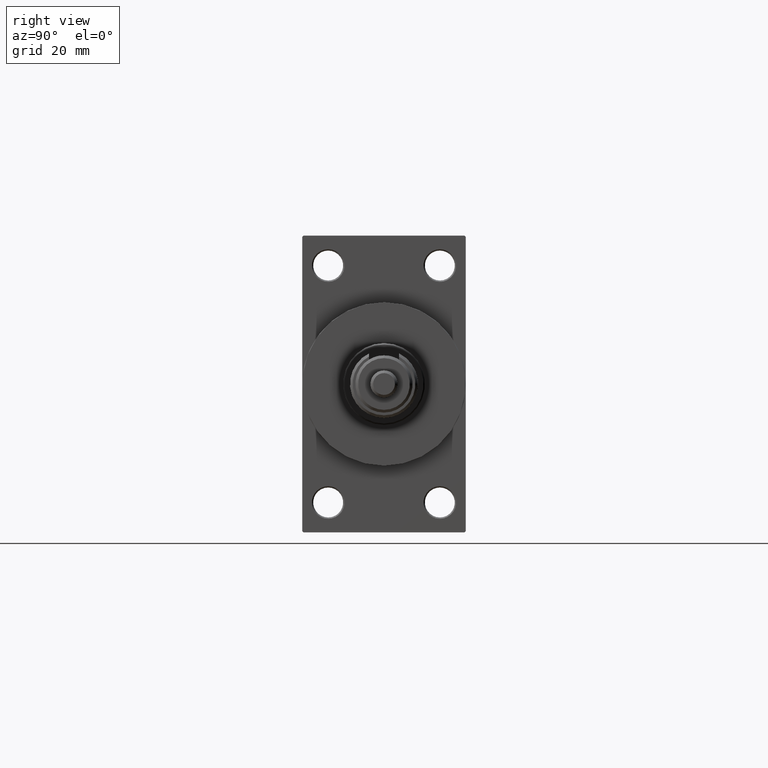
[diagram: clean part render]
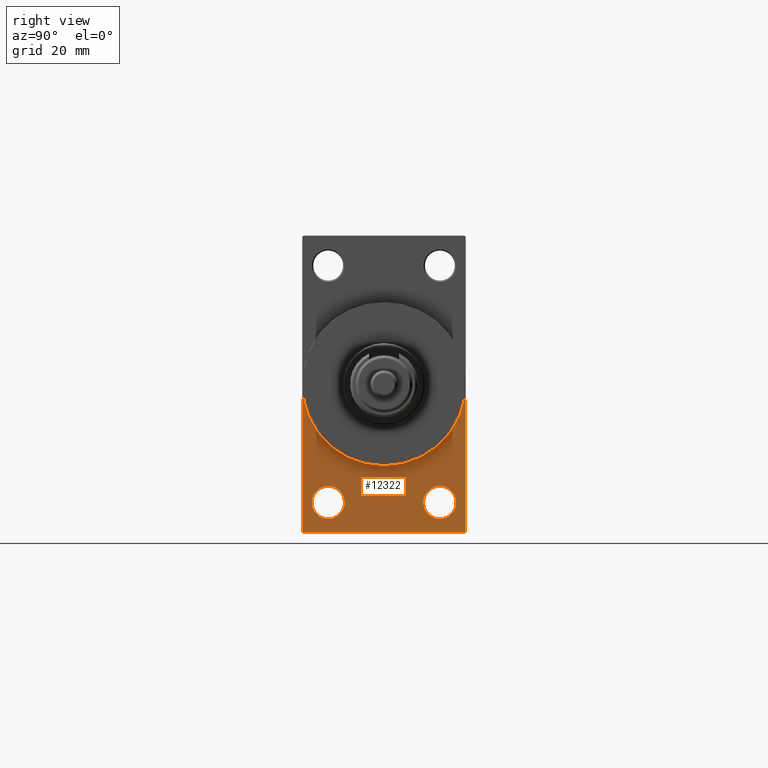
[diagram: same view with one face highlighted and labeled with its STEP entity id]
A machine part, right view. The second image highlights one B-rep face of the part: STEP entity #12322.
In plain terms, the highlighted planar face has unit normal (-1, 0, 0).
Its self-contained STEP definition (entity closure, byte-faithful):
#931 = CARTESIAN_POINT ( 'NONE',  ( 138.0000000000000000, 20.50000000000000000, -49.50000000000008527 ) ) ;
#1162 = VERTEX_POINT ( 'NONE', #6576 ) ;
#1564 = LINE ( 'NONE', #8390, #17440 ) ;
#3748 = ORIENTED_EDGE ( 'NONE', *, *, #33341, .T. ) ;
#4634 = CARTESIAN_POINT ( 'NONE',  ( 138.0000000000000000, 29.99999999999999645, 54.49999999999999289 ) ) ;
#4803 = ORIENTED_EDGE ( 'NONE', *, *, #39272, .F. ) ;
#5381 = DIRECTION ( 'NONE',  ( 0.000000000000000000, 0.000000000000000000, 1.000000000000000000 ) ) ;
#5729 = VERTEX_POINT ( 'NONE', #38475 ) ;
#6116 = CARTESIAN_POINT ( 'NONE',  ( 138.0000000000000000, 29.99999999999999645, -53.99999999999999289 ) ) ;
#6300 = PLANE ( 'NONE',  #34237 ) ;
#6576 = CARTESIAN_POINT ( 'NONE',  ( 138.0000000000000000, 29.49999999999999645, -54.49999999999999289 ) ) ;
#6777 = DIRECTION ( 'NONE',  ( 0.000000000000000000, 0.7071067811865352493, -0.7071067811865597852 ) ) ;
#7610 = ORIENTED_EDGE ( 'NONE', *, *, #15444, .F. ) ;
#8284 = VERTEX_POINT ( 'NONE', #43927 ) ;
#8390 = CARTESIAN_POINT ( 'NONE',  ( 138.0000000000000000, -30.00000000000000000, 54.50000000000000000 ) ) ;
#8700 = DIRECTION ( 'NONE',  ( 0.000000000000000000, 0.000000000000000000, -1.000000000000000000 ) ) ;
#9170 = CARTESIAN_POINT ( 'NONE',  ( 138.0000000000000000, -20.50000000000000000, -37.49999999999990763 ) ) ;
#9201 = DIRECTION ( 'NONE',  ( 1.000000000000000000, 0.000000000000000000, 0.000000000000000000 ) ) ;
#10167 = CARTESIAN_POINT ( 'NONE',  ( 138.0000000000000000, 20.50000000000000000, -43.50000000000000000 ) ) ;
#11751 = VERTEX_POINT ( 'NONE', #47091 ) ;
#12033 = ORIENTED_EDGE ( 'NONE', *, *, #41956, .T. ) ;
#12322 = ADVANCED_FACE ( 'NONE', ( #40970, #17918, #45265 ), #6300, .F. ) ;
#13218 = DIRECTION ( 'NONE',  ( -1.000000000000000000, 0.000000000000000000, -0.000000000000000000 ) ) ;
#13251 = CARTESIAN_POINT ( 'NONE',  ( 138.0000000000000000, 0.000000000000000000, 0.000000000000000000 ) ) ;
#13441 = VERTEX_POINT ( 'NONE', #931 ) ;
#13831 = DIRECTION ( 'NONE',  ( 0.000000000000000000, -1.000000000000000000, -1.156482317317871478E-16 ) ) ;
#14871 = CIRCLE ( 'NONE', #31053, 6.000000000000088818 ) ;
#15257 = EDGE_CURVE ( 'NONE', #17428, #24023, #45981, .T. ) ;
#15444 = EDGE_CURVE ( 'NONE', #31224, #8284, #23847, .T. ) ;
#16252 = LINE ( 'NONE', #4634, #42333 ) ;
#16434 = ORIENTED_EDGE ( 'NONE', *, *, #47219, .T. ) ;
#17428 = VERTEX_POINT ( 'NONE', #40728 ) ;
#17434 = DIRECTION ( 'NONE',  ( -0.000000000000000000, 0.000000000000000000, 1.000000000000000000 ) ) ;
#17440 = VECTOR ( 'NONE', #23809, 1000.000000000000000 ) ;
#17573 = CIRCLE ( 'NONE', #23205, 6.000000000000088818 ) ;
#17682 = CARTESIAN_POINT ( 'NONE',  ( 138.0000000000000000, 0.000000000000000000, 0.000000000000000000 ) ) ;
#17752 = DIRECTION ( 'NONE',  ( -1.000000000000000000, 0.000000000000000000, -0.000000000000000000 ) ) ;
#17918 = FACE_BOUND ( 'NONE', #20846, .T. ) ;
#18233 = DIRECTION ( 'NONE',  ( -0.000000000000000000, 0.7071067811865474617, 0.7071067811865474617 ) ) ;
#19123 = DIRECTION ( 'NONE',  ( -1.000000000000000000, 0.000000000000000000, -0.000000000000000000 ) ) ;
#20825 = CARTESIAN_POINT ( 'NONE',  ( 138.0000000000000000, 29.99999999999999645, -53.99999999999999289 ) ) ;
#20846 = EDGE_LOOP ( 'NONE', ( #12033, #36969 ) ) ;
#21401 = DIRECTION ( 'NONE',  ( 1.000000000000000000, 0.000000000000000000, 0.000000000000000000 ) ) ;
#22508 = ORIENTED_EDGE ( 'NONE', *, *, #30283, .F. ) ;
#22737 = ORIENTED_EDGE ( 'NONE', *, *, #34756, .T. ) ;
#23205 = AXIS2_PLACEMENT_3D ( 'NONE', #10167, #17752, #33195 ) ;
#23277 = CIRCLE ( 'NONE', #31375, 6.000000000000088818 ) ;
#23809 = DIRECTION ( 'NONE',  ( 0.000000000000000000, 0.000000000000000000, -1.000000000000000000 ) ) ;
#23847 = CIRCLE ( 'NONE', #41656, 30.00000000000000000 ) ;
#24023 = VERTEX_POINT ( 'NONE', #49757 ) ;
#24087 = DIRECTION ( 'NONE',  ( -1.000000000000000000, 0.000000000000000000, -0.000000000000000000 ) ) ;
#25233 = EDGE_CURVE ( 'NONE', #5729, #31224, #39751, .T. ) ;
#26001 = DIRECTION ( 'NONE',  ( -1.000000000000000000, 0.000000000000000000, -0.000000000000000000 ) ) ;
#27321 = CIRCLE ( 'NONE', #40402, 6.000000000000088818 ) ;
#27758 = CARTESIAN_POINT ( 'NONE',  ( 138.0000000000000000, -20.50000000000000000, -49.50000000000008527 ) ) ;
#27869 = ORIENTED_EDGE ( 'NONE', *, *, #33388, .T. ) ;
#28397 = CARTESIAN_POINT ( 'NONE',  ( 138.0000000000000000, -20.50000000000000000, -43.50000000000000000 ) ) ;
#28731 = VECTOR ( 'NONE', #18233, 1000.000000000000114 ) ;
#29113 = ORIENTED_EDGE ( 'NONE', *, *, #15257, .T. ) ;
#29268 = CARTESIAN_POINT ( 'NONE',  ( 138.0000000000000000, 29.99999999999999645, -54.49999999999999289 ) ) ;
#30283 = EDGE_CURVE ( 'NONE', #8284, #30373, #16252, .T. ) ;
#30373 = VERTEX_POINT ( 'NONE', #20825 ) ;
#31053 = AXIS2_PLACEMENT_3D ( 'NONE', #46226, #19123, #45987 ) ;
#31224 = VERTEX_POINT ( 'NONE', #38014 ) ;
#31375 = AXIS2_PLACEMENT_3D ( 'NONE', #28397, #24087, #5381 ) ;
#33069 = LINE ( 'NONE', #29268, #44976 ) ;
#33195 = DIRECTION ( 'NONE',  ( 0.000000000000000000, 0.000000000000000000, 1.000000000000000000 ) ) ;
#33341 = EDGE_CURVE ( 'NONE', #5729, #17428, #1564, .T. ) ;
#33388 = EDGE_CURVE ( 'NONE', #1162, #30373, #41275, .T. ) ;
#33797 = ORIENTED_EDGE ( 'NONE', *, *, #25233, .F. ) ;
#34237 = AXIS2_PLACEMENT_3D ( 'NONE', #17682, #26001, #17434 ) ;
#34756 = EDGE_CURVE ( 'NONE', #47713, #47257, #14871, .T. ) ;
#36863 = DIRECTION ( 'NONE',  ( 0.000000000000000000, 0.000000000000000000, -1.000000000000000000 ) ) ;
#36969 = ORIENTED_EDGE ( 'NONE', *, *, #47229, .T. ) ;
#38014 = CARTESIAN_POINT ( 'NONE',  ( 138.0000000000000000, 3.673940397442059178E-15, -30.00000000000000000 ) ) ;
#38122 = AXIS2_PLACEMENT_3D ( 'NONE', #13251, #9201, #8700 ) ;
#38475 = CARTESIAN_POINT ( 'NONE',  ( 138.0000000000000000, -30.00000000000000000, 0.000000000000000000 ) ) ;
#39272 = EDGE_CURVE ( 'NONE', #1162, #24023, #33069, .T. ) ;
#39751 = CIRCLE ( 'NONE', #38122, 30.00000000000000000 ) ;
#40139 = CARTESIAN_POINT ( 'NONE',  ( 138.0000000000000000, 0.000000000000000000, 0.000000000000000000 ) ) ;
#40402 = AXIS2_PLACEMENT_3D ( 'NONE', #47640, #13218, #43080 ) ;
#40728 = CARTESIAN_POINT ( 'NONE',  ( 138.0000000000000000, -30.00000000000000000, -53.99999999999998579 ) ) ;
#40970 = FACE_BOUND ( 'NONE', #48469, .T. ) ;
#41275 = LINE ( 'NONE', #6116, #28731 ) ;
#41444 = CARTESIAN_POINT ( 'NONE',  ( 138.0000000000000000, -29.50000000000000355, -54.50000000000000000 ) ) ;
#41656 = AXIS2_PLACEMENT_3D ( 'NONE', #40139, #21401, #36863 ) ;
#41956 = EDGE_CURVE ( 'NONE', #13441, #11751, #17573, .T. ) ;
#42333 = VECTOR ( 'NONE', #44131, 1000.000000000000000 ) ;
#43080 = DIRECTION ( 'NONE',  ( 0.000000000000000000, 0.000000000000000000, 1.000000000000000000 ) ) ;
#43927 = CARTESIAN_POINT ( 'NONE',  ( 138.0000000000000000, 30.00000000000000000, 0.000000000000000000 ) ) ;
#44131 = DIRECTION ( 'NONE',  ( 0.000000000000000000, 0.000000000000000000, -1.000000000000000000 ) ) ;
#44625 = EDGE_LOOP ( 'NONE', ( #3748, #29113, #4803, #27869, #22508, #7610, #33797 ) ) ;
#44976 = VECTOR ( 'NONE', #13831, 1000.000000000000000 ) ;
#45265 = FACE_OUTER_BOUND ( 'NONE', #44625, .T. ) ;
#45659 = VECTOR ( 'NONE', #6777, 1000.000000000000000 ) ;
#45981 = LINE ( 'NONE', #41444, #45659 ) ;
#45987 = DIRECTION ( 'NONE',  ( 0.000000000000000000, 0.000000000000000000, 1.000000000000000000 ) ) ;
#46226 = CARTESIAN_POINT ( 'NONE',  ( 138.0000000000000000, -20.50000000000000000, -43.50000000000000000 ) ) ;
#47091 = CARTESIAN_POINT ( 'NONE',  ( 138.0000000000000000, 20.50000000000000000, -37.49999999999990763 ) ) ;
#47219 = EDGE_CURVE ( 'NONE', #47257, #47713, #23277, .T. ) ;
#47229 = EDGE_CURVE ( 'NONE', #11751, #13441, #27321, .T. ) ;
#47257 = VERTEX_POINT ( 'NONE', #9170 ) ;
#47640 = CARTESIAN_POINT ( 'NONE',  ( 138.0000000000000000, 20.50000000000000000, -43.50000000000000000 ) ) ;
#47713 = VERTEX_POINT ( 'NONE', #27758 ) ;
#48469 = EDGE_LOOP ( 'NONE', ( #22737, #16434 ) ) ;
#49757 = CARTESIAN_POINT ( 'NONE',  ( 138.0000000000000000, -29.50000000000000355, -54.50000000000000000 ) ) ;